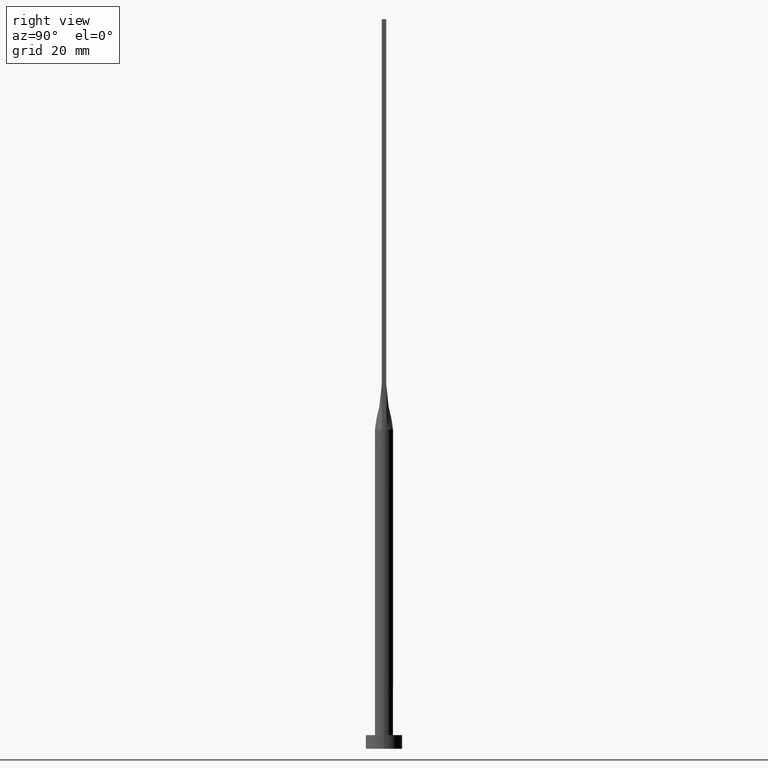
[diagram: clean part render]
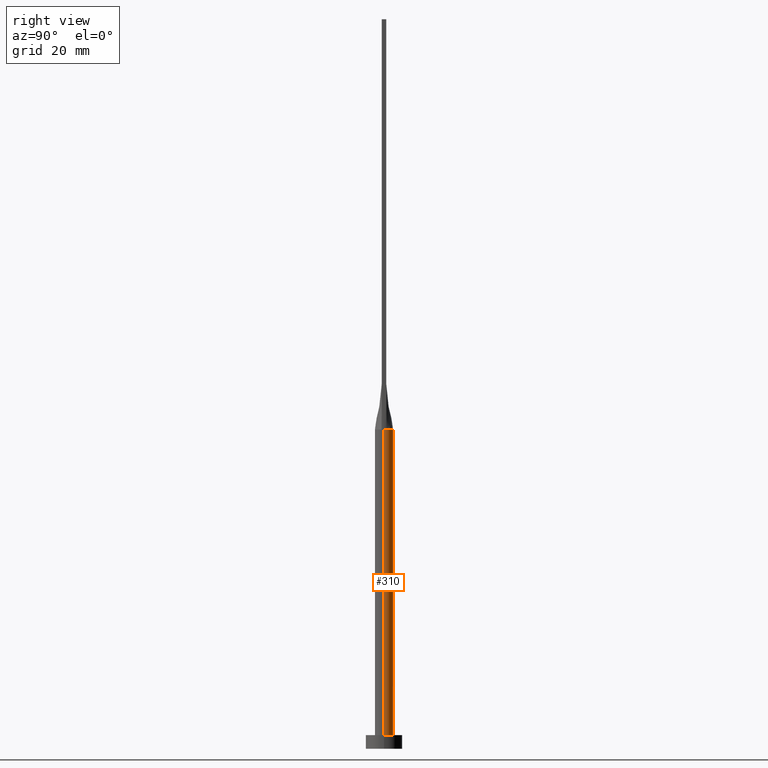
[diagram: same view with one face highlighted and labeled with its STEP entity id]
A machine part, right view. The second image highlights one B-rep face of the part: STEP entity #310.
In plain terms, the highlighted cylindrical surface (edge-blend (fillet) strip) has radius 2 mm, axis along (-0, -0, -1).
Its self-contained STEP definition (entity closure, byte-faithful):
#2 = CARTESIAN_POINT ( 'NONE',  ( 1.923154993136894975, 0.5494733089275741778, 70.00000000000000000 ) ) ;
#14 = CARTESIAN_POINT ( 'NONE',  ( -0.9545234919502401105, 1.774214358793530177, 70.00000000000000000 ) ) ;
#34 = VECTOR ( 'NONE', #475, 1000.000000000000000 ) ;
#41 = EDGE_CURVE ( 'NONE', #249, #257, #168, .T. ) ;
#62 = CARTESIAN_POINT ( 'NONE',  ( -1.879022738048941710, 0.7035303061092221810, 70.00000000000000000 ) ) ;
#72 = VERTEX_POINT ( 'NONE', #517 ) ;
#89 = CARTESIAN_POINT ( 'NONE',  ( -0.5022746254375797248, 1.951069421695588169, 70.00000000000000000 ) ) ;
#93 = EDGE_LOOP ( 'NONE', ( #233, #159, #108, #405, #138, #487 ) ) ;
#108 = ORIENTED_EDGE ( 'NONE', *, *, #243, .T. ) ;
#110 = CARTESIAN_POINT ( 'NONE',  ( -1.923179810488875541, 0.5494804890868837388, 70.00000000000000000 ) ) ;
#129 = AXIS2_PLACEMENT_3D ( 'NONE', #144, #340, #519 ) ;
#130 = CARTESIAN_POINT ( 'NONE',  ( 0.2514338042514535632, 1.999999999999999556, 70.00000000000001421 ) ) ;
#138 = ORIENTED_EDGE ( 'NONE', *, *, #250, .F. ) ;
#142 = CYLINDRICAL_SURFACE ( 'NONE', #556, 2.000000000000000000 ) ;
#144 = CARTESIAN_POINT ( 'NONE',  ( 0.000000000000000000, 0.000000000000000000, 3.000000000000000000 ) ) ;
#149 = DIRECTION ( 'NONE',  ( 0.000000000000000000, 0.000000000000000000, 1.000000000000000000 ) ) ;
#151 = DIRECTION ( 'NONE',  ( -0.000000000000000000, -0.000000000000000000, -1.000000000000000000 ) ) ;
#154 = CARTESIAN_POINT ( 'NONE',  ( 0.000000000000000000, 0.000000000000000000, 70.00000000000000000 ) ) ;
#156 = VERTEX_POINT ( 'NONE', #355 ) ;
#159 = ORIENTED_EDGE ( 'NONE', *, *, #163, .T. ) ;
#163 = EDGE_CURVE ( 'NONE', #249, #433, #534, .T. ) ;
#164 = CARTESIAN_POINT ( 'NONE',  ( -1.923179810488875541, 0.5494804890868837388, 70.00000000000000000 ) ) ;
#168 = CIRCLE ( 'NONE', #414, 2.000000000000000000 ) ;
#174 = CARTESIAN_POINT ( 'NONE',  ( 1.812374357931689328, 0.8669367617086293221, 70.00000000000001421 ) ) ;
#176 = DIRECTION ( 'NONE',  ( -0.000000000000000000, -0.000000000000000000, -1.000000000000000000 ) ) ;
#183 = CARTESIAN_POINT ( 'NONE',  ( 1.616149014776643522, 1.193458220519943103, 69.99999999999998579 ) ) ;
#186 = DIRECTION ( 'NONE',  ( 0.000000000000000000, 0.000000000000000000, 1.000000000000000000 ) ) ;
#192 = LINE ( 'NONE', #280, #34 ) ;
#202 = CARTESIAN_POINT ( 'NONE',  ( 2.000000000000000000, 2.449293598294706414E-16, 3.000000000000000000 ) ) ;
#230 = EDGE_CURVE ( 'NONE', #257, #474, #497, .T. ) ;
#233 = ORIENTED_EDGE ( 'NONE', *, *, #41, .F. ) ;
#234 = AXIS2_PLACEMENT_3D ( 'NONE', #154, #149, #516 ) ;
#239 = CARTESIAN_POINT ( 'NONE',  ( 1.923154993136894975, 0.5494733089275741778, 70.00000000000000000 ) ) ;
#243 = EDGE_CURVE ( 'NONE', #433, #72, #494, .T. ) ;
#248 = CARTESIAN_POINT ( 'NONE',  ( 0.000000000000000000, 0.000000000000000000, 70.00000000000000000 ) ) ;
#249 = VERTEX_POINT ( 'NONE', #471 ) ;
#250 = EDGE_CURVE ( 'NONE', #474, #156, #438, .T. ) ;
#257 = VERTEX_POINT ( 'NONE', #239 ) ;
#265 = CARTESIAN_POINT ( 'NONE',  ( -1.155438169178558017, 1.647245198242353936, 70.00000000000001421 ) ) ;
#277 = CARTESIAN_POINT ( 'NONE',  ( 1.879022738048942154, 0.7035303061092218480, 70.00000000000001421 ) ) ;
#280 = CARTESIAN_POINT ( 'NONE',  ( -2.000000000000000000, 0.000000000000000000, 70.00000000000000000 ) ) ;
#286 = DIRECTION ( 'NONE',  ( -1.000000000000000000, 0.000000000000000000, 0.000000000000000000 ) ) ;
#287 = CARTESIAN_POINT ( 'NONE',  ( 0.000000000000000000, 0.000000000000000000, 70.00000000000000000 ) ) ;
#292 = FACE_OUTER_BOUND ( 'NONE', #93, .T. ) ;
#310 = ADVANCED_FACE ( 'NONE', ( #292 ), #142, .T. ) ;
#320 = CARTESIAN_POINT ( 'NONE',  ( 0.9545234919502409987, 1.774214358793529955, 70.00000000000000000 ) ) ;
#340 = DIRECTION ( 'NONE',  ( 0.000000000000000000, 0.000000000000000000, 1.000000000000000000 ) ) ;
#355 = CARTESIAN_POINT ( 'NONE',  ( -2.000000000000000000, 8.710755549421510381E-17, 70.00000000000000000 ) ) ;
#358 = EDGE_CURVE ( 'NONE', #156, #72, #192, .T. ) ;
#360 = CARTESIAN_POINT ( 'NONE',  ( 2.000000000000000000, 2.449293598294706414E-16, 70.00000000000000000 ) ) ;
#370 = CARTESIAN_POINT ( 'NONE',  ( 1.155438169178558461, 1.647245198242353714, 70.00000000000001421 ) ) ;
#375 = DIRECTION ( 'NONE',  ( 1.000000000000000000, 0.000000000000000000, 0.000000000000000000 ) ) ;
#405 = ORIENTED_EDGE ( 'NONE', *, *, #358, .F. ) ;
#414 = AXIS2_PLACEMENT_3D ( 'NONE', #287, #186, #375 ) ;
#422 = CARTESIAN_POINT ( 'NONE',  ( -1.812374357931688884, 0.8669367617086288780, 70.00000000000001421 ) ) ;
#433 = VERTEX_POINT ( 'NONE', #202 ) ;
#438 = CIRCLE ( 'NONE', #234, 2.000000000000000000 ) ;
#453 = CARTESIAN_POINT ( 'NONE',  ( -1.486037034853319616, 1.356520562679218056, 70.00000000000000000 ) ) ;
#467 = VECTOR ( 'NONE', #176, 1000.000000000000000 ) ;
#471 = CARTESIAN_POINT ( 'NONE',  ( 2.000000000000000000, 2.759698982225367658E-17, 70.00000000000000000 ) ) ;
#474 = VERTEX_POINT ( 'NONE', #164 ) ;
#475 = DIRECTION ( 'NONE',  ( -0.000000000000000000, -0.000000000000000000, -1.000000000000000000 ) ) ;
#487 = ORIENTED_EDGE ( 'NONE', *, *, #230, .F. ) ;
#494 = CIRCLE ( 'NONE', #129, 2.000000000000000000 ) ;
#497 = B_SPLINE_CURVE_WITH_KNOTS ( 'NONE', 3,
 ( #2, #277, #174, #183, #538, #370, #320, #546, #130, #506, #89, #14, #265, #453, #553, #422, #62, #110 ),
 .UNSPECIFIED., .F., .F.,
 ( 4, 2, 2, 2, 2, 2, 2, 2, 4 ),
 ( 0.000000000000000000, 0.1249999999999999722, 0.2500000000000000000, 0.3750000000000000000, 0.5000000000000001110, 0.6250000000000001110, 0.7500000000000000000, 0.8750000000000000000, 1.000000000000000000 ),
 .UNSPECIFIED. ) ;
#506 = CARTESIAN_POINT ( 'NONE',  ( -0.2514338042514528415, 1.999999999999999556, 70.00000000000002842 ) ) ;
#516 = DIRECTION ( 'NONE',  ( 1.000000000000000000, 0.000000000000000000, 0.000000000000000000 ) ) ;
#517 = CARTESIAN_POINT ( 'NONE',  ( -2.000000000000000000, 0.000000000000000000, 3.000000000000000000 ) ) ;
#519 = DIRECTION ( 'NONE',  ( 1.000000000000000000, 0.000000000000000000, 0.000000000000000000 ) ) ;
#534 = LINE ( 'NONE', #360, #467 ) ;
#538 = CARTESIAN_POINT ( 'NONE',  ( 1.486037034853319616, 1.356520562679217834, 69.99999999999998579 ) ) ;
#546 = CARTESIAN_POINT ( 'NONE',  ( 0.5022746254375803909, 1.951069421695587947, 70.00000000000001421 ) ) ;
#553 = CARTESIAN_POINT ( 'NONE',  ( -1.616149014776643966, 1.193458220519943103, 70.00000000000001421 ) ) ;
#556 = AXIS2_PLACEMENT_3D ( 'NONE', #248, #151, #286 ) ;